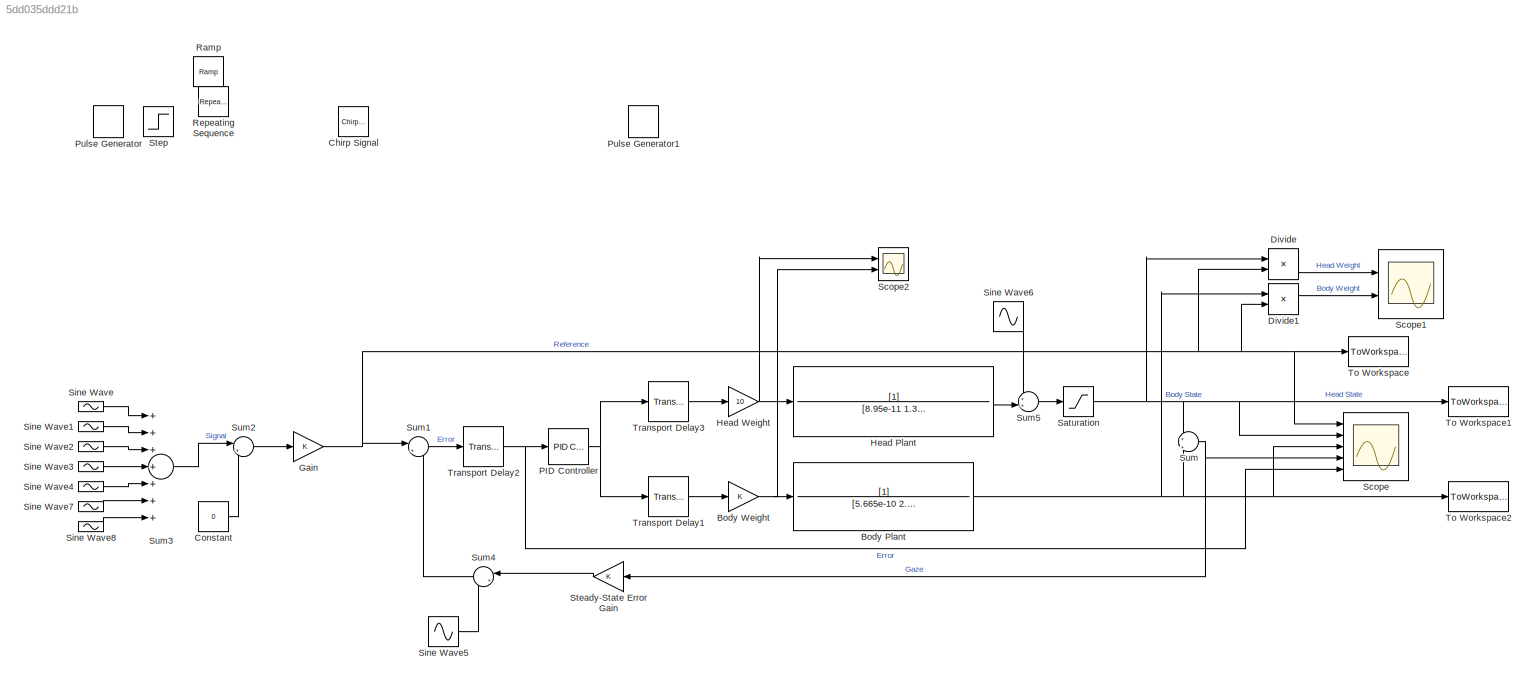
MODEL slx_5dd035ddd21b
KIND model
CONFIG AbsTol = auto
CONFIG EnableMultiTasking = off
CONFIG FixedStep = 0.001
CONFIG MaxStep = auto
CONFIG MinStep = auto
CONFIG RelTol = 1e-3
CONFIG SampleTimeConstraint = Unconstrained
CONFIG Solver = FixedStepAuto
CONFIG SolverName = FixedStepAuto
CONFIG StartTime = 0.0
CONFIG StopTime = 10
BLOCK [TransferFcn] Body Plant
  Denominator = [5.665e-10 2.7020e-8 0]
BLOCK [Gain] Body Weight
  OutDataTypeStr = Inherit: Inherit via internal rule
  ParamDataTypeStr = Inherit: Inherit via internal rule
  SaturateOnIntegerOverflow = off
BLOCK [Reference] Chirp Signal  REF=simulink/Sources/Chirp Signal
  Ports = [0, 1]
  SourceBlock = simulink/Sources/Chirp Signal
  SourceProductBaseCode = SL
  SourceProductName = Simulink
  SourceType = chirp
BLOCK [Constant] Constant
  Value = 0
BLOCK [Product] Divide
  InputSameDT = off
  Inputs = */
  OutDataTypeStr = Inherit: Inherit via internal rule
  Ports = [2, 1]
  RndMeth = Floor
  SaturateOnIntegerOverflow = off
BLOCK [Product] Divide1
  InputSameDT = off
  Inputs = */
  OutDataTypeStr = Inherit: Inherit via internal rule
  Ports = [2, 1]
  RndMeth = Floor
  SaturateOnIntegerOverflow = off
BLOCK [Gain] Gain
  OutDataTypeStr = Inherit: Inherit via internal rule
  ParamDataTypeStr = Inherit: Inherit via internal rule
  SaturateOnIntegerOverflow = off
BLOCK [TransferFcn] Head Plant
  Denominator = [8.95e-11 1.351e-7 2.2375e-7]
BLOCK [Gain] Head Weight
  Gain = 10
  OutDataTypeStr = Inherit: Inherit via internal rule
  ParamDataTypeStr = Inherit: Inherit via internal rule
  SaturateOnIntegerOverflow = off
BLOCK [Reference] PID Controller  REF=simulink/Continuous/PID Controller
  Ports = [1, 1]
  SourceBlock = simulink/Continuous/PID Controller
  SourceProductBaseCode = SL
  SourceProductName = Simulink
  SourceType = PID 1dof
BLOCK [DiscretePulseGenerator] Pulse Generator
  Period = 5
  Ports = [0, 1]
  PulseType = Time based
  PulseWidth = 50
BLOCK [DiscretePulseGenerator] Pulse Generator1
  Amplitude = 20
  Ports = [0, 1]
  PulseType = Time based
  PulseWidth = 50
BLOCK [Reference] Ramp  REF=simulink/Sources/Ramp
  Ports = [0, 1]
  SourceBlock = simulink/Sources/Ramp
  SourceProductBaseCode = SL
  SourceProductName = Simulink
  SourceType = Ramp
BLOCK [Reference] Repeating Sequence  REF=simulink/Sources/Repeating
Sequence
  Ports = [0, 1]
  SourceBlock = simulink/Sources/Repeating\nSequence
  SourceProductBaseCode = SL
  SourceProductName = Simulink
  SourceType = Repeating table
BLOCK [Saturate] Saturation
  InputPortMap = u0
  LowerLimit = -17
  Ports = [1, 1]
  UpperLimit = 17
BLOCK [Scope] Scope
  Floating = off
  NumInputPorts = 5
  Ports = [5]
  ScopeSpecificationString = Simulink.scopes.TimeScopeBlockCfg('CurrentConfiguration', extmgr.ConfigurationSet(extmgr.Configuration('Core','General UI',true),extmgr.Configuration('Core','Source UI',true),extmgr.Configuration('Sources','WiredSimulink',true),extmgr.Configuration('Visuals','Time Domain',true,'SerializedDisplays',{struct('MinYLimReal','-41.16472','MaxYLimReal','39.27279','YLabelReal','deg','MinYLimMag','0.00000',...<+1972ch>
BLOCK [Scope] Scope1
  Floating = off
  NumInputPorts = 2
  Ports = [2]
  ScopeSpecificationString = Simulink.scopes.TimeScopeBlockCfg('CurrentConfiguration', extmgr.ConfigurationSet(extmgr.Configuration('Core','General UI',true),extmgr.Configuration('Core','Source UI',true),extmgr.Configuration('Sources','WiredSimulink',true,'DataLoggingVariableName','ScopeData1'),extmgr.Configuration('Visuals','Time Domain',true,'SerializedDisplays',{struct('MinYLimReal','-569.61142','MaxYLimReal','593.05328','...<+1904ch>
BLOCK [Scope] Scope2
  Floating = off
  NumInputPorts = 2
  Ports = [2]
  ScopeSpecificationString = Simulink.scopes.TimeScopeBlockCfg('CurrentConfiguration', extmgr.ConfigurationSet(extmgr.Configuration('Core','General UI',true),extmgr.Configuration('Core','Source UI',true),extmgr.Configuration('Sources','WiredSimulink',true,'DataLoggingVariableName','ScopeData1'),extmgr.Configuration('Visuals','Time Domain',true,'SerializedDisplays',{struct('MinYLimReal','-0.00021','MaxYLimReal','0.0007','YLabe...<+1410ch>
BLOCK [Sin] Sine Wave
  Amplitude = 10
  Frequency = 2*pi*0.5
  Phase = 1.2
  Ports = [0, 1]
  SampleTime = 0
BLOCK [Sin] Sine Wave1
  Amplitude = 10
  Frequency = 2*pi*1.4
  Phase = 0.77
  Ports = [0, 1]
  SampleTime = 0
BLOCK [Sin] Sine Wave2
  Amplitude = 10
  Frequency = 2*pi*3.3
  Phase = 2.4
  Ports = [0, 1]
  SampleTime = 0
BLOCK [Sin] Sine Wave3
  Amplitude = 10
  Frequency = 2*pi*7.6
  Phase = 0.664565
  Ports = [0, 1]
  SampleTime = 0
BLOCK [Sin] Sine Wave4
  Amplitude = 10
  Frequency = 2*pi*10
  Phase = 0.1786
  Ports = [0, 1]
  SampleTime = 0
BLOCK [Sin] Sine Wave5
  Amplitude = 0
  Frequency = 20
  Ports = [0, 1]
  SampleTime = 0
BLOCK [Sin] Sine Wave6
  Amplitude = 0
  Frequency = 16
  Ports = [0, 1]
  SampleTime = 0
BLOCK [Sin] Sine Wave7
  Amplitude = 0
  Frequency = 2*pi*0.2
  Phase = 0.8925
  Ports = [0, 1]
  SampleTime = 0
BLOCK [Sin] Sine Wave8
  Amplitude = 0
  Frequency = 2*pi*20
  Phase = 0.1786
  Ports = [0, 1]
  SampleTime = 0
BLOCK [Gain] Steady-State Error Gain
  OutDataTypeStr = Inherit: Inherit via internal rule
  ParamDataTypeStr = Inherit: Inherit via internal rule
  SaturateOnIntegerOverflow = off
BLOCK [Step] Step
  After = 50
  SampleTime = 0
  Time = 0.1
BLOCK [Sum] Sum
  IconShape = round
  InputSameDT = off
  Inputs = +|+
  OutDataTypeStr = Inherit: Inherit via internal rule
  Ports = [2, 1]
  SaturateOnIntegerOverflow = off
BLOCK [Sum] Sum1
  IconShape = round
  InputSameDT = off
  Inputs = |+-
  OutDataTypeStr = Inherit: Inherit via internal rule
  Ports = [2, 1]
  SaturateOnIntegerOverflow = off
BLOCK [Sum] Sum2
  IconShape = round
  InputSameDT = off
  Inputs = |+-
  OutDataTypeStr = Inherit: Inherit via internal rule
  Ports = [2, 1]
  SaturateOnIntegerOverflow = off
BLOCK [Sum] Sum3
  InputSameDT = off
  Inputs = +++++++
  OutDataTypeStr = Inherit: Inherit via internal rule
  Ports = [7, 1]
  SaturateOnIntegerOverflow = off
BLOCK [Sum] Sum4
  IconShape = round
  InputSameDT = off
  Inputs = |++
  OutDataTypeStr = Inherit: Inherit via internal rule
  Ports = [2, 1]
  SaturateOnIntegerOverflow = off
BLOCK [Sum] Sum5
  IconShape = round
  InputSameDT = off
  Inputs = ++|
  OutDataTypeStr = Inherit: Inherit via internal rule
  Ports = [2, 1]
  SaturateOnIntegerOverflow = off
BLOCK [ToWorkspace] To Workspace
  FixptAsFi = on
  MaxDataPoints = inf
  Ports = [1]
  SampleTime = -1
  Save2DSignal = 2-D array (concatenate along first dimension)
  VariableName = refAng
BLOCK [ToWorkspace] To Workspace1
  FixptAsFi = on
  MaxDataPoints = inf
  Ports = [1]
  SampleTime = -1
  Save2DSignal = 2-D array (concatenate along first dimension)
  VariableName = headAng
BLOCK [ToWorkspace] To Workspace2
  FixptAsFi = on
  MaxDataPoints = inf
  Ports = [1]
  SampleTime = -1
  Save2DSignal = 2-D array (concatenate along first dimension)
  VariableName = bodyAng
BLOCK [TransportDelay] Transport Delay1
  DelayTime = 0
  Ports = [1, 1]
BLOCK [TransportDelay] Transport Delay2
  DelayTime = 0
  Ports = [1, 1]
BLOCK [TransportDelay] Transport Delay3
  DelayTime = 0
  Ports = [1, 1]
NET Body Plant:1 -> Divide1:1, Scope:3, Sum:2, To Workspace2:1
NET Body Weight:1 -> Body Plant:1, Scope2:2
LINE Constant:1 -> Sum2:2
LINE Divide1:1 -> Scope1:2
LINE Divide:1 -> Scope1:1
NET Gain:1 -> Divide1:2, Divide:2, Scope:1, Sum1:1, To Workspace:1
LINE Head Plant:1 -> Sum5:2
NET Head Weight:1 -> Head Plant:1, Scope2:1
NET PID Controller:1 -> Transport Delay1:1, Transport Delay3:1
NET Saturation:1 -> Divide:1, Scope:2, Sum:1, To Workspace1:1
LINE Sine Wave1:1 -> Sum3:2
LINE Sine Wave2:1 -> Sum3:3
LINE Sine Wave3:1 -> Sum3:4
LINE Sine Wave4:1 -> Sum3:5
LINE Sine Wave5:1 -> Sum4:2
LINE Sine Wave6:1 -> Sum5:1
LINE Sine Wave7:1 -> Sum3:6
LINE Sine Wave8:1 -> Sum3:7
LINE Sine Wave:1 -> Sum3:1
LINE Steady-State Error Gain:1 -> Sum4:1
LINE Sum1:1 -> Transport Delay2:1
LINE Sum2:1 -> Gain:1
LINE Sum3:1 -> Sum2:1
LINE Sum4:1 -> Sum1:2
LINE Sum5:1 -> Saturation:1
NET Sum:1 -> Scope:4, Steady-State Error Gain:1
LINE Transport Delay1:1 -> Body Weight:1
NET Transport Delay2:1 -> PID Controller:1, Scope:5
LINE Transport Delay3:1 -> Head Weight:1
note: NET lines group one-source signal fan-out (src -> all destinations, sorted); 1:1 wires keep LINE
